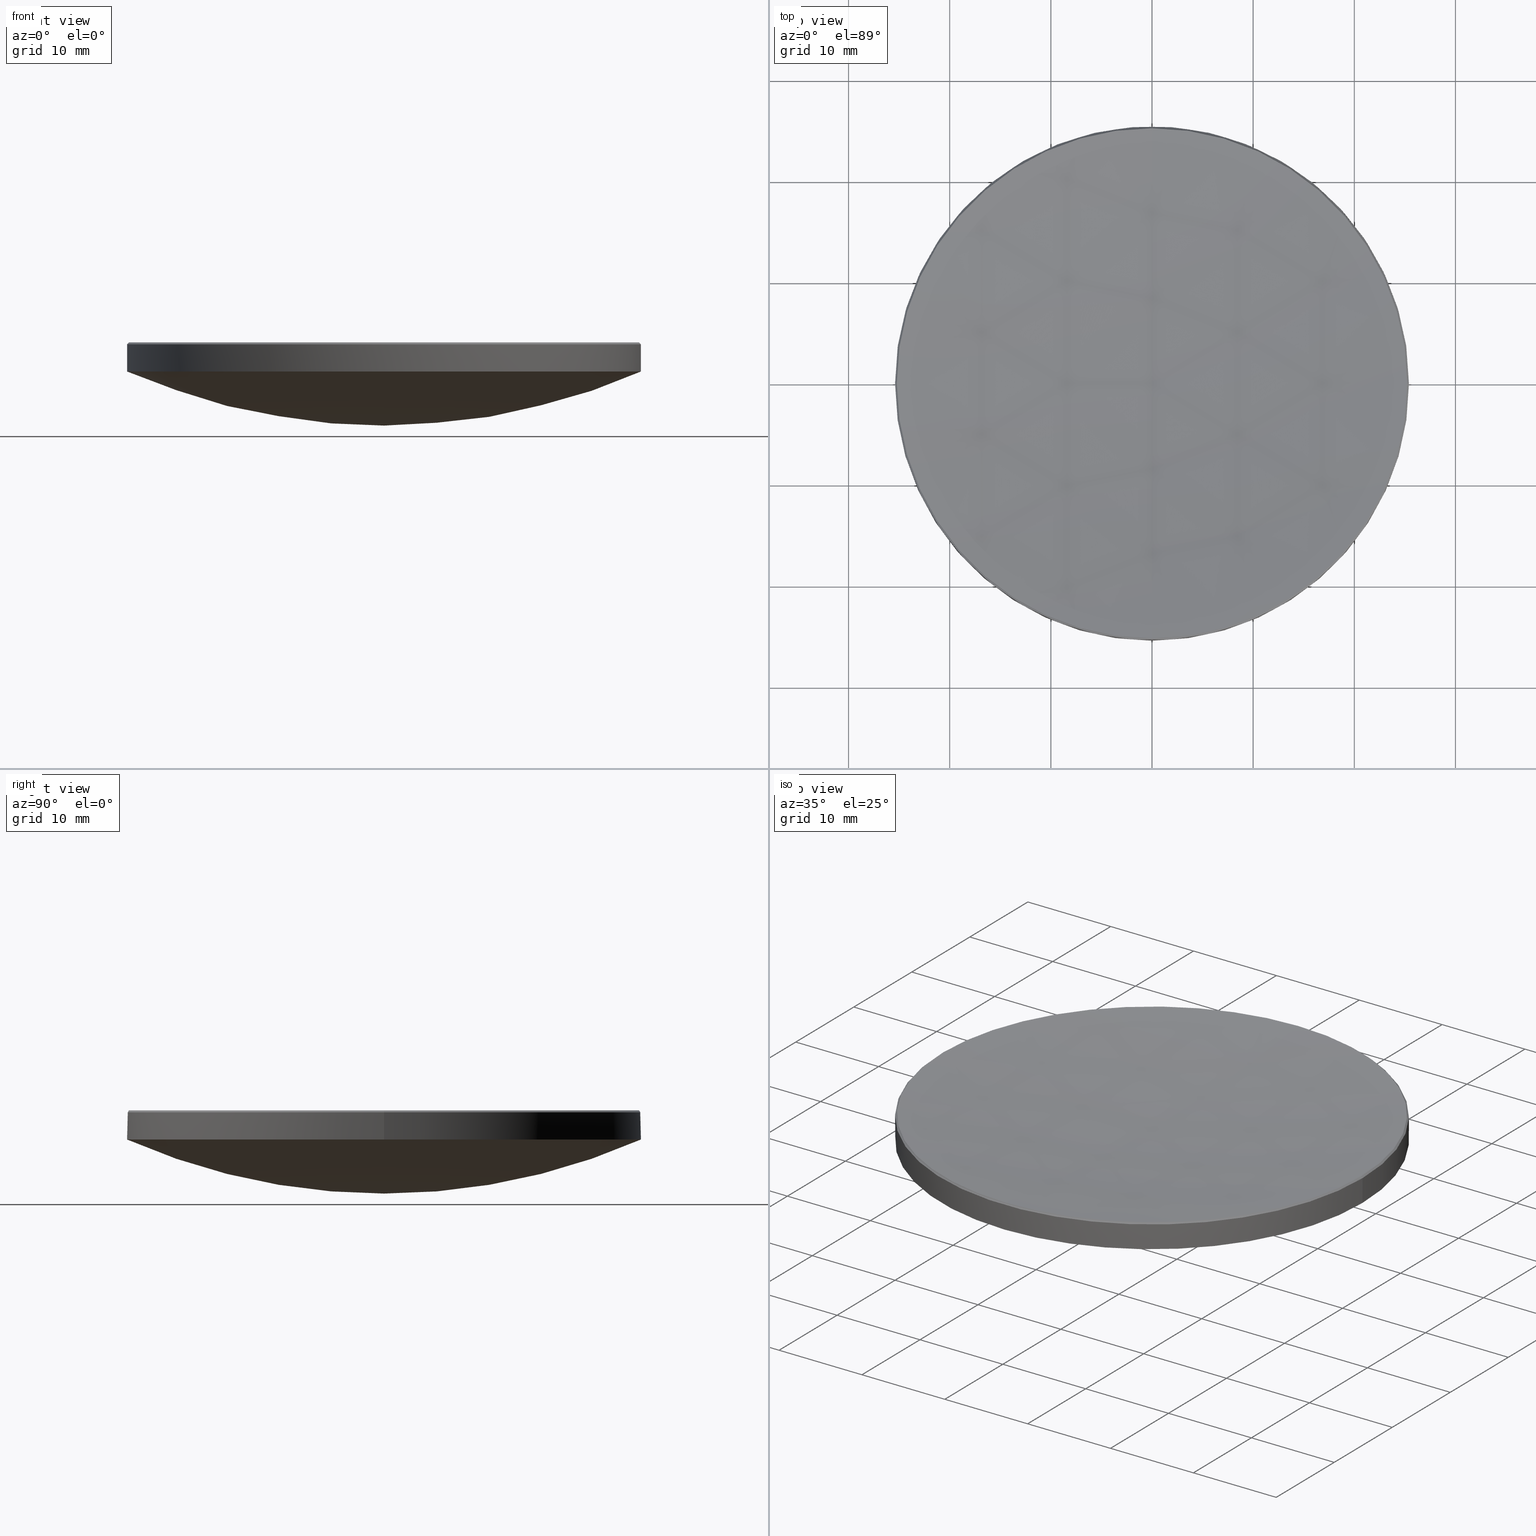
[diagram: canonical four-view strip — front | top / right | iso, engineering-drawing reading convention]
A machine part, canonical four-view strip (front | top / right | iso — engineering-drawing reading convention). The complete STEP part file that produces these views, byte-faithful:
ISO-10303-21;
HEADER;
FILE_DESCRIPTION (( 'STEP AP214' ),
    '1' );
FILE_NAME ('GLM2-050B-200.STEP',
    '2024-08-09T02:53:28',
    ( 'Windows User' ),
    ( 'P R C' ),
    'SwSTEP 2.0',
    'SolidWorks 2022',
    '' );
FILE_SCHEMA (( 'AUTOMOTIVE_DESIGN' ));
ENDSEC;

DATA;
#1 = DIRECTION ( 'NONE',  ( -1.000000000000000000, 1.224646799147353207E-16, 0.000000000000000000 ) ) ;
#2 = AXIS2_PLACEMENT_3D ( 'NONE', #142, #222, #244 ) ;
#3 = PRESENTATION_STYLE_ASSIGNMENT (( #162 ) ) ;
#4 = EDGE_CURVE ( 'NONE', #57, #155, #127, .T. ) ;
#5 = VECTOR ( 'NONE', #159, 1000.000000000000000 ) ;
#6 = CARTESIAN_POINT ( 'NONE',  ( 0.000000000000000000, 1.184294687115447689E-14, 15.22489014782887828 ) ) ;
#7 = VERTEX_POINT ( 'NONE', #95 ) ;
#8 = ORIENTED_EDGE ( 'NONE', *, *, #4, .F. ) ;
#9 = ORIENTED_EDGE ( 'NONE', *, *, #91, .F. ) ;
#10 = EDGE_CURVE ( 'NONE', #160, #119, #40, .T. ) ;
#11 = VECTOR ( 'NONE', #187, 1000.000000000000000 ) ;
#12 = DIRECTION ( 'NONE',  ( -1.000000000000000000, 0.000000000000000000, 0.000000000000000000 ) ) ;
#13 = CARTESIAN_POINT ( 'NONE',  ( -25.39999999999999503, 0.000000000000000000, 14.00000000000000000 ) ) ;
#14 = CARTESIAN_POINT ( 'NONE',  ( 0.000000000000000000, 0.000000000000000000, 16.87667753647542668 ) ) ;
#15 = DIRECTION ( 'NONE',  ( 0.000000000000000000, 1.000000000000000000, 0.000000000000000000 ) ) ;
#16 = AXIS2_PLACEMENT_3D ( 'NONE', #29, #1, #46 ) ;
#17 = VECTOR ( 'NONE', #250, 1000.000000000000000 ) ;
#18 = CARTESIAN_POINT ( 'NONE',  ( 0.000000000000000000, 0.000000000000000000, 14.00000000000000000 ) ) ;
#19 = EDGE_CURVE ( 'NONE', #223, #176, #182, .T. ) ;
#20 = AXIS2_PLACEMENT_3D ( 'NONE', #41, #86, #15 ) ;
#21 = UNCERTAINTY_MEASURE_WITH_UNIT (LENGTH_MEASURE( 1.000000000000000082E-05 ), #206, 'distance_accuracy_value', 'NONE');
#22 = PRODUCT_DEFINITION_FORMATION_WITH_SPECIFIED_SOURCE ( '�κ�', '', #129, .NOT_KNOWN. ) ;
#23 = AXIS2_PLACEMENT_3D ( 'NONE', #247, #197, #232 ) ;
#24 = PRESENTATION_STYLE_ASSIGNMENT (( #219 ) ) ;
#25 = MECHANICAL_DESIGN_GEOMETRIC_PRESENTATION_REPRESENTATION (  '', ( #185 ), #255 ) ;
#26 = AXIS2_PLACEMENT_3D ( 'NONE', #254, #63, #225 ) ;
#27 = LINE ( 'NONE', #31, #45 ) ;
#28 = ORIENTED_EDGE ( 'NONE', *, *, #274, .F. ) ;
#29 = CARTESIAN_POINT ( 'NONE',  ( 0.000000000000000000, 0.000000000000000000, 208.6348901478288553 ) ) ;
#30 = ORIENTED_EDGE ( 'NONE', *, *, #196, .T. ) ;
#31 = CARTESIAN_POINT ( 'NONE',  ( 25.22332246352458895, 3.088966111881692095E-15, 16.87667753647536983 ) ) ;
#32 = ORIENTED_EDGE ( 'NONE', *, *, #138, .F. ) ;
#33 = CARTESIAN_POINT ( 'NONE',  ( 0.000000000000000000, 0.000000000000000000, 16.87667753647536983 ) ) ;
#34 = ORIENTED_EDGE ( 'NONE', *, *, #91, .T. ) ;
#35 = CARTESIAN_POINT ( 'NONE',  ( 25.39999999999999503, 3.110602869834276471E-15, 14.00000000000000000 ) ) ;
#36 = DIRECTION ( 'NONE',  ( 1.000000000000000000, 0.000000000000000000, 0.000000000000000000 ) ) ;
#37 = DIRECTION ( 'NONE',  ( -0.000000000000000000, -0.000000000000000000, 1.000000000000000000 ) ) ;
#38 = FACE_OUTER_BOUND ( 'NONE', #183, .T. ) ;
#39 = CYLINDRICAL_SURFACE ( 'NONE', #209, 25.39999999999999858 ) ;
#40 = CIRCLE ( 'NONE', #23, 25.39999999999999503 ) ;
#41 = CARTESIAN_POINT ( 'NONE',  ( 0.000000000000000000, 0.000000000000000000, 71.67460793104710604 ) ) ;
#42 = AXIS2_PLACEMENT_3D ( 'NONE', #14, #191, #211 ) ;
#43 = ORIENTED_EDGE ( 'NONE', *, *, #161, .T. ) ;
#44 = PRODUCT_RELATED_PRODUCT_CATEGORY ( 'part', '', ( #129 ) ) ;
#45 = VECTOR ( 'NONE', #50, 1000.000000000000000 ) ;
#46 = DIRECTION ( 'NONE',  ( -1.224646799147353207E-16, -1.000000000000000000, 0.000000000000000000 ) ) ;
#47 = EDGE_LOOP ( 'NONE', ( #121, #164, #141, #139, #9 ) ) ;
#48 = DIRECTION ( 'NONE',  ( 0.000000000000000000, 1.000000000000000000, 0.000000000000000000 ) ) ;
#49 = VERTEX_POINT ( 'NONE', #75 ) ;
#50 = DIRECTION ( 'NONE',  ( 0.7071067811865544561, 8.659560562355019140E-17, -0.7071067811865405783 ) ) ;
#51 =( GEOMETRIC_REPRESENTATION_CONTEXT ( 3 ) GLOBAL_UNCERTAINTY_ASSIGNED_CONTEXT ( ( #281 ) ) GLOBAL_UNIT_ASSIGNED_CONTEXT ( ( #221, #263, #156 ) ) REPRESENTATION_CONTEXT ( 'NONE', 'WORKASPACE' ) );
#52 = EDGE_LOOP ( 'NONE', ( #122, #131, #84, #231 ) ) ;
#53 = CONICAL_SURFACE ( 'NONE', #133, 25.22332246352458895, 0.7853981633974581600 ) ;
#54 = AXIS2_PLACEMENT_3D ( 'NONE', #259, #66, #85 ) ;
#55 = CARTESIAN_POINT ( 'NONE',  ( 0.000000000000000000, 0.000000000000000000, 208.6348901478288553 ) ) ;
#56 =( NAMED_UNIT ( * ) SI_UNIT ( $, .STERADIAN. ) SOLID_ANGLE_UNIT ( ) );
#57 = VERTEX_POINT ( 'NONE', #6 ) ;
#58 = DIRECTION ( 'NONE',  ( 0.000000000000000000, 0.000000000000000000, -1.000000000000000000 ) ) ;
#59 = CLOSED_SHELL ( 'NONE', ( #189, #214, #172, #111, #109, #130, #88, #96 ) ) ;
#60 = CARTESIAN_POINT ( 'NONE',  ( 25.22332246352458540, 3.099784490857984480E-15, 16.87667753647542668 ) ) ;
#61 = EDGE_CURVE ( 'NONE', #202, #160, #218, .T. ) ;
#62 = CIRCLE ( 'NONE', #42, 25.22332246352458540 ) ;
#63 = DIRECTION ( 'NONE',  ( -1.000000000000000000, 0.000000000000000000, 0.000000000000000000 ) ) ;
#64 = SHAPE_DEFINITION_REPRESENTATION ( #93, #238 ) ;
#65 = EDGE_CURVE ( 'NONE', #137, #176, #27, .T. ) ;
#66 = DIRECTION ( 'NONE',  ( 0.000000000000000000, 0.000000000000000000, -1.000000000000000000 ) ) ;
#67 = CIRCLE ( 'NONE', #16, 193.4099999999999682 ) ;
#68 = CIRCLE ( 'NONE', #220, 25.39999999999999503 ) ;
#69 = EDGE_CURVE ( 'NONE', #101, #223, #276, .T. ) ;
#70 = APPLICATION_CONTEXT ( 'automotive_design' ) ;
#71 = CIRCLE ( 'NONE', #112, 25.22332246352458540 ) ;
#72 = UNCERTAINTY_MEASURE_WITH_UNIT (LENGTH_MEASURE( 1.000000000000000082E-05 ), #241, 'distance_accuracy_value', 'NONE');
#73 = EDGE_CURVE ( 'NONE', #82, #137, #71, .T. ) ;
#74 = DIRECTION ( 'NONE',  ( -0.000000000000000000, -0.000000000000000000, 1.000000000000000000 ) ) ;
#75 = CARTESIAN_POINT ( 'NONE',  ( 0.000000000000000000, 3.858862064113310261E-15, 8.654607931047095803 ) ) ;
#76 = ORIENTED_EDGE ( 'NONE', *, *, #69, .F. ) ;
#77 = CARTESIAN_POINT ( 'NONE',  ( -25.39999999999999858, 0.000000000000000000, 16.69999999999996376 ) ) ;
#78 = LINE ( 'NONE', #230, #5 ) ;
#79 = FILL_AREA_STYLE ('',( #98 ) ) ;
#80 = ORIENTED_EDGE ( 'NONE', *, *, #196, .F. ) ;
#81 = SURFACE_SIDE_STYLE ('',( #252 ) ) ;
#82 = VERTEX_POINT ( 'NONE', #270 ) ;
#83 = CONICAL_SURFACE ( 'NONE', #175, 25.22332246352458895, 0.7853981633974581600 ) ;
#84 = ORIENTED_EDGE ( 'NONE', *, *, #61, .F. ) ;
#85 = DIRECTION ( 'NONE',  ( 1.000000000000000000, 0.000000000000000000, 0.000000000000000000 ) ) ;
#86 = DIRECTION ( 'NONE',  ( -1.000000000000000000, 0.000000000000000000, 0.000000000000000000 ) ) ;
#87 = PRODUCT_CONTEXT ( 'NONE', #192, 'mechanical' ) ;
#88 = ADVANCED_FACE ( 'NONE', ( #200 ), #120, .F. ) ;
#89 = FACE_OUTER_BOUND ( 'NONE', #47, .T. ) ;
#90 = CARTESIAN_POINT ( 'NONE',  ( 25.39999999999999858, 3.110602869834276865E-15, 20.00000000000000000 ) ) ;
#91 = EDGE_CURVE ( 'NONE', #223, #202, #78, .T. ) ;
#92 = MECHANICAL_DESIGN_GEOMETRIC_PRESENTATION_REPRESENTATION (  '', ( #213 ), #110 ) ;
#93 = PRODUCT_DEFINITION_SHAPE ( 'NONE', 'NONE',  #146 ) ;
#94 = MANIFOLD_SOLID_BREP ( '����1', #59 ) ;
#95 = CARTESIAN_POINT ( 'NONE',  ( 0.000000000000000000, 25.39999999999999147, 14.00000000000000178 ) ) ;
#96 = ADVANCED_FACE ( 'NONE', ( #38 ), #53, .T. ) ;
#97 = ORIENTED_EDGE ( 'NONE', *, *, #201, .T. ) ;
#98 = FILL_AREA_STYLE_COLOUR ( '', #272 ) ;
#99 = ORIENTED_EDGE ( 'NONE', *, *, #138, .T. ) ;
#100 = ORIENTED_EDGE ( 'NONE', *, *, #73, .T. ) ;
#101 = VERTEX_POINT ( 'NONE', #190 ) ;
#102 =( NAMED_UNIT ( * ) PLANE_ANGLE_UNIT ( ) SI_UNIT ( $, .RADIAN. ) );
#103 = PRESENTATION_LAYER_ASSIGNMENT (  '', '', ( #213 ) ) ;
#104 = CIRCLE ( 'NONE', #134, 63.02000000000000313 ) ;
#105 = LINE ( 'NONE', #90, #11 ) ;
#106 = FACE_OUTER_BOUND ( 'NONE', #239, .T. ) ;
#107 = DIRECTION ( 'NONE',  ( -1.000000000000000000, 0.000000000000000000, 0.000000000000000000 ) ) ;
#108 = SPHERICAL_SURFACE ( 'NONE', #237, 63.02000000000000313 ) ;
#109 = ADVANCED_FACE ( 'NONE', ( #151 ), #39, .T. ) ;
#110 =( GEOMETRIC_REPRESENTATION_CONTEXT ( 3 ) GLOBAL_UNCERTAINTY_ASSIGNED_CONTEXT ( ( #21 ) ) GLOBAL_UNIT_ASSIGNED_CONTEXT ( ( #206, #125, #56 ) ) REPRESENTATION_CONTEXT ( 'NONE', 'WORKASPACE' ) );
#111 = ADVANCED_FACE ( 'NONE', ( #89 ), #235, .T. ) ;
#112 = AXIS2_PLACEMENT_3D ( 'NONE', #179, #227, #115 ) ;
#113 = SURFACE_STYLE_FILL_AREA ( #79 ) ;
#114 = CIRCLE ( 'NONE', #275, 25.22332246352458540 ) ;
#115 = DIRECTION ( 'NONE',  ( 1.000000000000000000, 0.000000000000000000, 0.000000000000000000 ) ) ;
#116 = CARTESIAN_POINT ( 'NONE',  ( -25.22332246352458895, 0.000000000000000000, 16.87667753647536983 ) ) ;
#117 = DIRECTION ( 'NONE',  ( -1.224646799147353207E-16, -1.000000000000000000, 0.000000000000000000 ) ) ;
#118 = DIRECTION ( 'NONE',  ( -0.000000000000000000, -0.000000000000000000, 1.000000000000000000 ) ) ;
#119 = VERTEX_POINT ( 'NONE', #35 ) ;
#120 = SPHERICAL_SURFACE ( 'NONE', #273, 193.4099999999999682 ) ;
#121 = ORIENTED_EDGE ( 'NONE', *, *, #19, .T. ) ;
#122 = ORIENTED_EDGE ( 'NONE', *, *, #201, .F. ) ;
#123 = CARTESIAN_POINT ( 'NONE',  ( -3.110602869834276076E-15, -25.39999999999999147, 14.00000000000000178 ) ) ;
#124 = DIRECTION ( 'NONE',  ( 1.000000000000000000, -0.000000000000000000, 0.000000000000000000 ) ) ;
#125 =( NAMED_UNIT ( * ) PLANE_ANGLE_UNIT ( ) SI_UNIT ( $, .RADIAN. ) );
#126 = DIRECTION ( 'NONE',  ( 0.000000000000000000, 0.000000000000000000, -1.000000000000000000 ) ) ;
#127 = CIRCLE ( 'NONE', #282, 193.4099999999999682 ) ;
#128 = DIRECTION ( 'NONE',  ( -0.000000000000000000, -0.000000000000000000, -1.000000000000000000 ) ) ;
#129 = PRODUCT ( 'GLM2-050B-200', 'GLM2-050B-200', '', ( #87 ) ) ;
#130 = ADVANCED_FACE ( 'NONE', ( #258 ), #216, .T. ) ;
#131 = ORIENTED_EDGE ( 'NONE', *, *, #256, .T. ) ;
#132 = SURFACE_SIDE_STYLE ('',( #113 ) ) ;
#133 = AXIS2_PLACEMENT_3D ( 'NONE', #33, #126, #107 ) ;
#134 = AXIS2_PLACEMENT_3D ( 'NONE', #240, #248, #117 ) ;
#135 = ORIENTED_EDGE ( 'NONE', *, *, #261, .T. ) ;
#136 = DIRECTION ( 'NONE',  ( 1.000000000000000000, 0.000000000000000000, 0.000000000000000000 ) ) ;
#137 = VERTEX_POINT ( 'NONE', #60 ) ;
#138 = EDGE_CURVE ( 'NONE', #101, #82, #62, .T. ) ;
#139 = ORIENTED_EDGE ( 'NONE', *, *, #243, .T. ) ;
#140 = CARTESIAN_POINT ( 'NONE',  ( 0.000000000000000000, 0.000000000000000000, 16.87667753647542668 ) ) ;
#141 = ORIENTED_EDGE ( 'NONE', *, *, #177, .T. ) ;
#142 = CARTESIAN_POINT ( 'NONE',  ( 0.000000000000000000, 0.000000000000000000, 16.69999999999996376 ) ) ;
#143 = CIRCLE ( 'NONE', #163, 25.22332246352458540 ) ;
#144 = ORIENTED_EDGE ( 'NONE', *, *, #10, .T. ) ;
#145 = ORIENTED_EDGE ( 'NONE', *, *, #65, .F. ) ;
#146 = PRODUCT_DEFINITION ( 'δ֪', '', #22, #174 ) ;
#147 = EDGE_LOOP ( 'NONE', ( #271, #226, #158, #76, #157 ) ) ;
#148 = ORIENTED_EDGE ( 'NONE', *, *, #256, .F. ) ;
#149 = CARTESIAN_POINT ( 'NONE',  ( 0.000000000000000000, 0.000000000000000000, 20.00000000000000000 ) ) ;
#150 = DIRECTION ( 'NONE',  ( -1.000000000000000000, 0.000000000000000000, 0.000000000000000000 ) ) ;
#151 = FACE_OUTER_BOUND ( 'NONE', #180, .T. ) ;
#152 = DIRECTION ( 'NONE',  ( -1.000000000000000000, 0.000000000000000000, 0.000000000000000000 ) ) ;
#153 = AXIS2_PLACEMENT_3D ( 'NONE', #166, #124, #210 ) ;
#154 = DIRECTION ( 'NONE',  ( -0.000000000000000000, -0.000000000000000000, -1.000000000000000000 ) ) ;
#155 = VERTEX_POINT ( 'NONE', #171 ) ;
#156 =( NAMED_UNIT ( * ) SI_UNIT ( $, .STERADIAN. ) SOLID_ANGLE_UNIT ( ) );
#157 = ORIENTED_EDGE ( 'NONE', *, *, #161, .F. ) ;
#158 = ORIENTED_EDGE ( 'NONE', *, *, #19, .F. ) ;
#159 = DIRECTION ( 'NONE',  ( -0.000000000000000000, -0.000000000000000000, -1.000000000000000000 ) ) ;
#160 = VERTEX_POINT ( 'NONE', #123 ) ;
#161 = EDGE_CURVE ( 'NONE', #155, #101, #114, .T. ) ;
#162 = SURFACE_STYLE_USAGE ( .BOTH. , #81 ) ;
#163 = AXIS2_PLACEMENT_3D ( 'NONE', #140, #228, #136 ) ;
#164 = ORIENTED_EDGE ( 'NONE', *, *, #193, .T. ) ;
#165 = APPLICATION_PROTOCOL_DEFINITION ( 'draft international standard', 'automotive_design', 1998, #70 ) ;
#166 = CARTESIAN_POINT ( 'NONE',  ( 0.000000000000000000, 0.000000000000000000, 71.67460793104710604 ) ) ;
#167 = SPHERICAL_SURFACE ( 'NONE', #26, 193.4099999999999682 ) ;
#168 = COLOUR_RGB ( '',1.000000000000000000, 1.000000000000000000, 1.000000000000000000 ) ;
#169 = FACE_OUTER_BOUND ( 'NONE', #52, .T. ) ;
#170 = CARTESIAN_POINT ( 'NONE',  ( 0.000000000000000000, 0.000000000000000000, 16.87667753647542668 ) ) ;
#171 = CARTESIAN_POINT ( 'NONE',  ( 0.000000000000000000, 25.22332246352477370, 16.87667753647541247 ) ) ;
#172 = ADVANCED_FACE ( 'NONE', ( #169 ), #108, .T. ) ;
#173 = CIRCLE ( 'NONE', #54, 25.39999999999999858 ) ;
#174 = PRODUCT_DEFINITION_CONTEXT ( 'detailed design', #70, 'design' ) ;
#175 = AXIS2_PLACEMENT_3D ( 'NONE', #194, #280, #12 ) ;
#176 = VERTEX_POINT ( 'NONE', #279 ) ;
#177 = EDGE_CURVE ( 'NONE', #119, #7, #186, .T. ) ;
#178 = AXIS2_PLACEMENT_3D ( 'NONE', #149, #154, #152 ) ;
#179 = CARTESIAN_POINT ( 'NONE',  ( 0.000000000000000000, 0.000000000000000000, 16.87667753647542668 ) ) ;
#180 = EDGE_LOOP ( 'NONE', ( #205, #30, #34, #207, #144 ) ) ;
#181 = DIRECTION ( 'NONE',  ( 1.000000000000000000, 0.000000000000000000, 0.000000000000000000 ) ) ;
#182 = CIRCLE ( 'NONE', #2, 25.39999999999999858 ) ;
#183 = EDGE_LOOP ( 'NONE', ( #145, #229, #32, #249, #80 ) ) ;
#184 = DIRECTION ( 'NONE',  ( 1.000000000000000000, 0.000000000000000000, 0.000000000000000000 ) ) ;
#185 = STYLED_ITEM ( 'NONE', ( #3 ), #94 ) ;
#186 = CIRCLE ( 'NONE', #260, 25.39999999999999503 ) ;
#187 = DIRECTION ( 'NONE',  ( -0.000000000000000000, -0.000000000000000000, -1.000000000000000000 ) ) ;
#188 = CARTESIAN_POINT ( 'NONE',  ( 0.000000000000000000, 0.000000000000000000, 0.000000000000000000 ) ) ;
#189 = ADVANCED_FACE ( 'NONE', ( #208 ), #83, .T. ) ;
#190 = CARTESIAN_POINT ( 'NONE',  ( -25.22332246352458540, 0.000000000000000000, 16.87667753647542668 ) ) ;
#191 = DIRECTION ( 'NONE',  ( -0.000000000000000000, -0.000000000000000000, 1.000000000000000000 ) ) ;
#192 = APPLICATION_CONTEXT ( 'automotive_design' ) ;
#193 = EDGE_CURVE ( 'NONE', #176, #119, #105, .T. ) ;
#194 = CARTESIAN_POINT ( 'NONE',  ( 0.000000000000000000, 0.000000000000000000, 16.87667753647536983 ) ) ;
#195 = EDGE_LOOP ( 'NONE', ( #148, #97, #262, #204 ) ) ;
#196 = EDGE_CURVE ( 'NONE', #176, #223, #173, .T. ) ;
#197 = DIRECTION ( 'NONE',  ( -0.000000000000000000, -0.000000000000000000, 1.000000000000000000 ) ) ;
#198 = FILL_AREA_STYLE ('',( #203 ) ) ;
#199 = PRESENTATION_LAYER_ASSIGNMENT (  '', '', ( #185 ) ) ;
#200 = FACE_OUTER_BOUND ( 'NONE', #251, .T. ) ;
#201 = EDGE_CURVE ( 'NONE', #49, #7, #215, .T. ) ;
#202 = VERTEX_POINT ( 'NONE', #13 ) ;
#203 = FILL_AREA_STYLE_COLOUR ( '', #168 ) ;
#204 = ORIENTED_EDGE ( 'NONE', *, *, #10, .F. ) ;
#205 = ORIENTED_EDGE ( 'NONE', *, *, #193, .F. ) ;
#206 =( LENGTH_UNIT ( ) NAMED_UNIT ( * ) SI_UNIT ( .MILLI., .METRE. ) );
#207 = ORIENTED_EDGE ( 'NONE', *, *, #61, .T. ) ;
#208 = FACE_OUTER_BOUND ( 'NONE', #147, .T. ) ;
#209 = AXIS2_PLACEMENT_3D ( 'NONE', #234, #128, #150 ) ;
#210 = DIRECTION ( 'NONE',  ( 0.000000000000000000, 0.000000000000000000, -1.000000000000000000 ) ) ;
#211 = DIRECTION ( 'NONE',  ( 1.000000000000000000, 0.000000000000000000, 0.000000000000000000 ) ) ;
#212 = DIRECTION ( 'NONE',  ( 0.000000000000000000, 1.000000000000000000, 0.000000000000000000 ) ) ;
#213 = STYLED_ITEM ( 'NONE', ( #24 ), #238 ) ;
#214 = ADVANCED_FACE ( 'NONE', ( #106 ), #167, .F. ) ;
#215 = CIRCLE ( 'NONE', #153, 63.02000000000000313 ) ;
#216 = SPHERICAL_SURFACE ( 'NONE', #20, 63.02000000000000313 ) ;
#217 = AXIS2_PLACEMENT_3D ( 'NONE', #224, #118, #184 ) ;
#218 = CIRCLE ( 'NONE', #217, 25.39999999999999503 ) ;
#219 = SURFACE_STYLE_USAGE ( .BOTH. , #132 ) ;
#220 = AXIS2_PLACEMENT_3D ( 'NONE', #264, #74, #242 ) ;
#221 =( LENGTH_UNIT ( ) NAMED_UNIT ( * ) SI_UNIT ( .MILLI., .METRE. ) );
#222 = DIRECTION ( 'NONE',  ( 0.000000000000000000, 0.000000000000000000, -1.000000000000000000 ) ) ;
#223 = VERTEX_POINT ( 'NONE', #77 ) ;
#224 = CARTESIAN_POINT ( 'NONE',  ( 0.000000000000000000, 0.000000000000000000, 14.00000000000000000 ) ) ;
#225 = DIRECTION ( 'NONE',  ( 0.000000000000000000, 1.000000000000000000, 0.000000000000000000 ) ) ;
#226 = ORIENTED_EDGE ( 'NONE', *, *, #65, .T. ) ;
#227 = DIRECTION ( 'NONE',  ( -0.000000000000000000, -0.000000000000000000, 1.000000000000000000 ) ) ;
#228 = DIRECTION ( 'NONE',  ( -0.000000000000000000, -0.000000000000000000, 1.000000000000000000 ) ) ;
#229 = ORIENTED_EDGE ( 'NONE', *, *, #73, .F. ) ;
#230 = CARTESIAN_POINT ( 'NONE',  ( -25.39999999999999858, 0.000000000000000000, 20.00000000000000000 ) ) ;
#231 = ORIENTED_EDGE ( 'NONE', *, *, #243, .F. ) ;
#232 = DIRECTION ( 'NONE',  ( 1.000000000000000000, 0.000000000000000000, 0.000000000000000000 ) ) ;
#233 = DIRECTION ( 'NONE',  ( 0.000000000000000000, 0.000000000000000000, 1.000000000000000000 ) ) ;
#234 = CARTESIAN_POINT ( 'NONE',  ( 0.000000000000000000, 0.000000000000000000, 20.00000000000000000 ) ) ;
#235 = CYLINDRICAL_SURFACE ( 'NONE', #178, 25.39999999999999858 ) ;
#236 = DIRECTION ( 'NONE',  ( 1.000000000000000000, 0.000000000000000000, 0.000000000000000000 ) ) ;
#237 = AXIS2_PLACEMENT_3D ( 'NONE', #253, #257, #212 ) ;
#238 = ADVANCED_BREP_SHAPE_REPRESENTATION ( 'GLM2-050B-200', ( #94, #269 ), #51 ) ;
#239 = EDGE_LOOP ( 'NONE', ( #8, #246, #100, #135 ) ) ;
#240 = CARTESIAN_POINT ( 'NONE',  ( 0.000000000000000000, 0.000000000000000000, 71.67460793104710604 ) ) ;
#241 =( LENGTH_UNIT ( ) NAMED_UNIT ( * ) SI_UNIT ( .MILLI., .METRE. ) );
#242 = DIRECTION ( 'NONE',  ( 1.000000000000000000, 0.000000000000000000, 0.000000000000000000 ) ) ;
#243 = EDGE_CURVE ( 'NONE', #7, #202, #68, .T. ) ;
#244 = DIRECTION ( 'NONE',  ( 1.000000000000000000, 0.000000000000000000, 0.000000000000000000 ) ) ;
#245 = APPLICATION_PROTOCOL_DEFINITION ( 'draft international standard', 'automotive_design', 1998, #192 ) ;
#246 = ORIENTED_EDGE ( 'NONE', *, *, #274, .T. ) ;
#247 = CARTESIAN_POINT ( 'NONE',  ( 0.000000000000000000, 0.000000000000000000, 14.00000000000000000 ) ) ;
#248 = DIRECTION ( 'NONE',  ( -1.000000000000000000, 1.224646799147353207E-16, 0.000000000000000000 ) ) ;
#249 = ORIENTED_EDGE ( 'NONE', *, *, #69, .T. ) ;
#250 = DIRECTION ( 'NONE',  ( -0.7071067811865544561, 0.000000000000000000, -0.7071067811865405783 ) ) ;
#251 = EDGE_LOOP ( 'NONE', ( #28, #268, #43, #99 ) ) ;
#252 = SURFACE_STYLE_FILL_AREA ( #198 ) ;
#253 = CARTESIAN_POINT ( 'NONE',  ( 0.000000000000000000, 0.000000000000000000, 71.67460793104710604 ) ) ;
#254 = CARTESIAN_POINT ( 'NONE',  ( 0.000000000000000000, 0.000000000000000000, 208.6348901478288553 ) ) ;
#255 =( GEOMETRIC_REPRESENTATION_CONTEXT ( 3 ) GLOBAL_UNCERTAINTY_ASSIGNED_CONTEXT ( ( #72 ) ) GLOBAL_UNIT_ASSIGNED_CONTEXT ( ( #241, #102, #265 ) ) REPRESENTATION_CONTEXT ( 'NONE', 'WORKASPACE' ) );
#256 = EDGE_CURVE ( 'NONE', #49, #160, #104, .T. ) ;
#257 = DIRECTION ( 'NONE',  ( -1.000000000000000000, 0.000000000000000000, 0.000000000000000000 ) ) ;
#258 = FACE_OUTER_BOUND ( 'NONE', #195, .T. ) ;
#259 = CARTESIAN_POINT ( 'NONE',  ( 0.000000000000000000, 0.000000000000000000, 16.69999999999996376 ) ) ;
#260 = AXIS2_PLACEMENT_3D ( 'NONE', #18, #37, #236 ) ;
#261 = EDGE_CURVE ( 'NONE', #137, #155, #143, .T. ) ;
#262 = ORIENTED_EDGE ( 'NONE', *, *, #177, .F. ) ;
#263 =( NAMED_UNIT ( * ) PLANE_ANGLE_UNIT ( ) SI_UNIT ( $, .RADIAN. ) );
#264 = CARTESIAN_POINT ( 'NONE',  ( 0.000000000000000000, 0.000000000000000000, 14.00000000000000000 ) ) ;
#265 =( NAMED_UNIT ( * ) SI_UNIT ( $, .STERADIAN. ) SOLID_ANGLE_UNIT ( ) );
#266 = CARTESIAN_POINT ( 'NONE',  ( 0.000000000000000000, 0.000000000000000000, 208.6348901478288553 ) ) ;
#267 = DIRECTION ( 'NONE',  ( -1.000000000000000000, 0.000000000000000000, 0.000000000000000000 ) ) ;
#268 = ORIENTED_EDGE ( 'NONE', *, *, #4, .T. ) ;
#269 = AXIS2_PLACEMENT_3D ( 'NONE', #188, #233, #36 ) ;
#270 = CARTESIAN_POINT ( 'NONE',  ( -3.088966111881714183E-15, -25.22332246352477370, 16.87667753647541247 ) ) ;
#271 = ORIENTED_EDGE ( 'NONE', *, *, #261, .F. ) ;
#272 = COLOUR_RGB ( '',1.000000000000000000, 1.000000000000000000, 1.000000000000000000 ) ;
#273 = AXIS2_PLACEMENT_3D ( 'NONE', #55, #267, #48 ) ;
#274 = EDGE_CURVE ( 'NONE', #57, #82, #67, .T. ) ;
#275 = AXIS2_PLACEMENT_3D ( 'NONE', #170, #278, #277 ) ;
#276 = LINE ( 'NONE', #116, #17 ) ;
#277 = DIRECTION ( 'NONE',  ( 1.000000000000000000, 0.000000000000000000, 0.000000000000000000 ) ) ;
#278 = DIRECTION ( 'NONE',  ( -0.000000000000000000, -0.000000000000000000, 1.000000000000000000 ) ) ;
#279 = CARTESIAN_POINT ( 'NONE',  ( 25.39999999999999858, 3.110602869834276865E-15, 16.69999999999996376 ) ) ;
#280 = DIRECTION ( 'NONE',  ( 0.000000000000000000, 0.000000000000000000, -1.000000000000000000 ) ) ;
#281 = UNCERTAINTY_MEASURE_WITH_UNIT (LENGTH_MEASURE( 1.000000000000000082E-05 ), #221, 'distance_accuracy_value', 'NONE');
#282 = AXIS2_PLACEMENT_3D ( 'NONE', #266, #181, #58 ) ;
ENDSEC;
END-ISO-10303-21;
